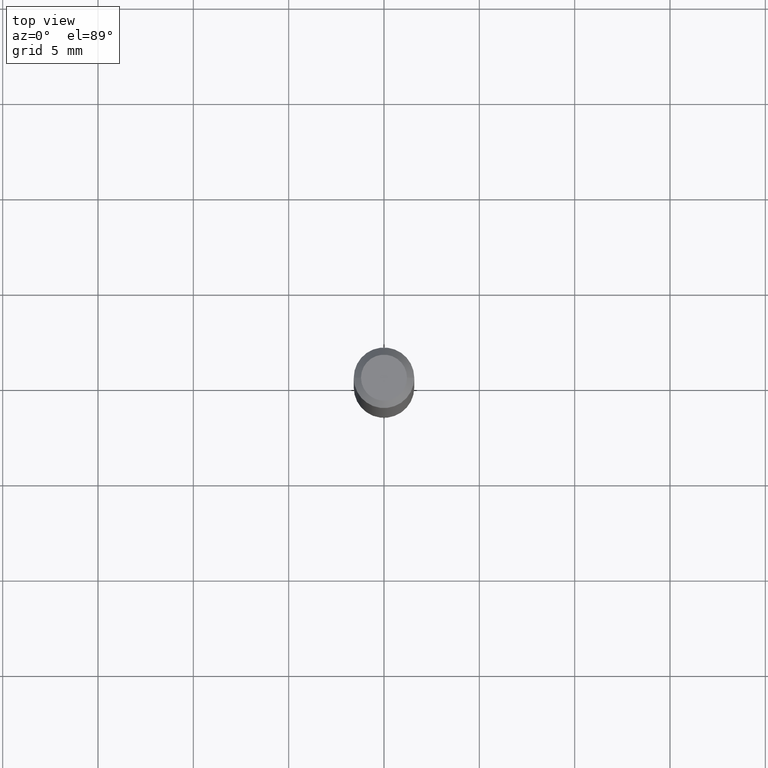
[diagram: clean part render]
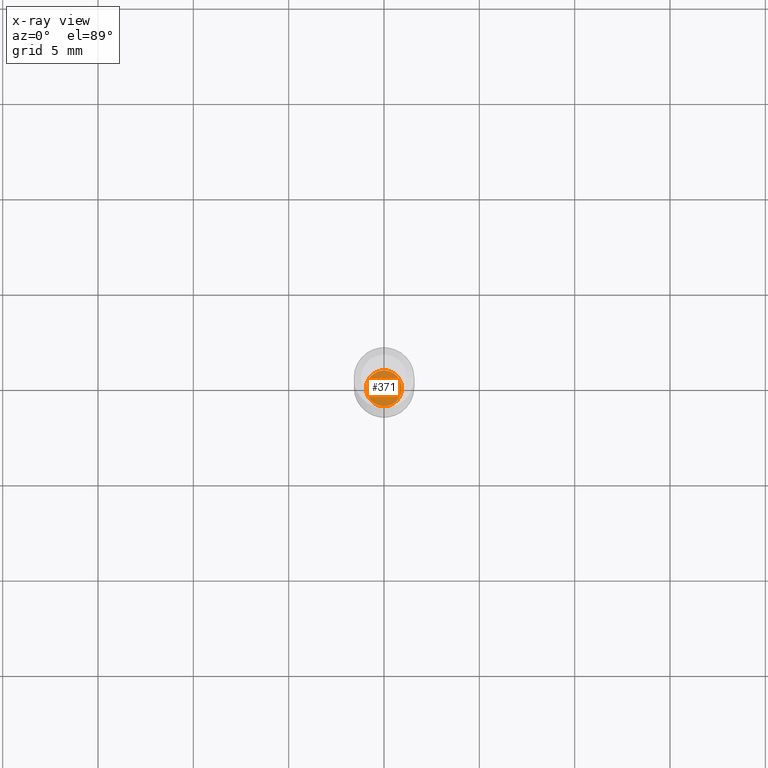
[diagram: x-ray — body ghosted, one internal face saturated and labeled with its STEP entity id]
A machine part, top view, then the same camera in x-ray: the body is ghosted and one INTERNAL B-rep face — a face not visible from any outside direction — is saturated and labeled: STEP entity #371.
In plain terms, the highlighted planar face has unit normal (-0, 0, 1).
Its self-contained STEP definition (entity closure, byte-faithful):
#16 = DIRECTION ( 'NONE',  ( 1.000000000000000000, -6.982962677686265922E-15, 4.876176775795935793E-29 ) ) ;
#88 = DIRECTION ( 'NONE',  ( -2.438088387897960049E-29, 3.491481338843145188E-15, 1.000000000000000000 ) ) ;
#90 = EDGE_CURVE ( 'NONE', #367, #315, #126, .T. ) ;
#116 = PLANE ( 'NONE',  #443 ) ;
#121 = CARTESIAN_POINT ( 'NONE',  ( 0.03699999999999997041, -4.710008326099402800E-15, -1.275000000000000133 ) ) ;
#126 = CIRCLE ( 'NONE', #418, 0.03699999999999997041 ) ;
#127 = CIRCLE ( 'NONE', #419, 0.03699999999999997041 ) ;
#170 = DIRECTION ( 'NONE',  ( -2.445468806185136597E-29, 3.491481338843145583E-15, 1.000000000000000000 ) ) ;
#226 = DIRECTION ( 'NONE',  ( 1.000000000000000000, -6.982962677686259611E-15, 0.000000000000000000 ) ) ;
#262 = CARTESIAN_POINT ( 'NONE',  ( 3.117972727886049049E-29, -4.451638707025011594E-15, -1.275000000000000133 ) ) ;
#279 = CARTESIAN_POINT ( 'NONE',  ( 3.117972727886049049E-29, -4.451638707025011594E-15, -1.275000000000000133 ) ) ;
#287 = ORIENTED_EDGE ( 'NONE', *, *, #448, .F. ) ;
#306 = EDGE_LOOP ( 'NONE', ( #287, #431 ) ) ;
#315 = VERTEX_POINT ( 'NONE', #121 ) ;
#367 = VERTEX_POINT ( 'NONE', #403 ) ;
#371 = ADVANCED_FACE ( 'NONE', ( #474 ), #116, .F. ) ;
#382 = CARTESIAN_POINT ( 'NONE',  ( 3.117972727886049049E-29, -4.451638707025011594E-15, -1.275000000000000133 ) ) ;
#403 = CARTESIAN_POINT ( 'NONE',  ( -0.03699999999999997041, -4.186088667619663880E-15, -1.275000000000000133 ) ) ;
#413 = DIRECTION ( 'NONE',  ( 1.000000000000000000, -6.982962677686259611E-15, 0.000000000000000000 ) ) ;
#414 = DIRECTION ( 'NONE',  ( -2.445468806185136597E-29, 3.491481338843145583E-15, 1.000000000000000000 ) ) ;
#418 = AXIS2_PLACEMENT_3D ( 'NONE', #382, #414, #226 ) ;
#419 = AXIS2_PLACEMENT_3D ( 'NONE', #262, #170, #413 ) ;
#431 = ORIENTED_EDGE ( 'NONE', *, *, #90, .F. ) ;
#443 = AXIS2_PLACEMENT_3D ( 'NONE', #279, #88, #16 ) ;
#448 = EDGE_CURVE ( 'NONE', #315, #367, #127, .T. ) ;
#474 = FACE_OUTER_BOUND ( 'NONE', #306, .T. ) ;